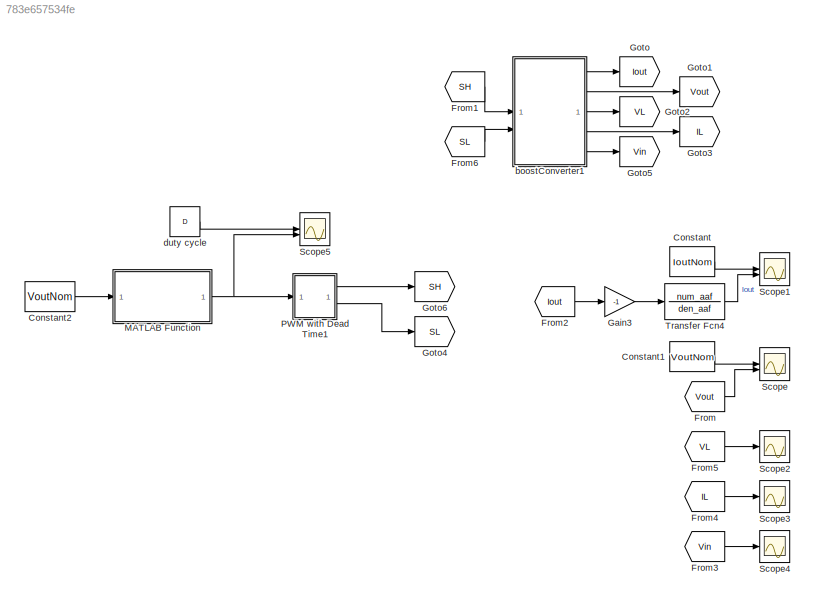
MODEL slx_783e657534fe
KIND model
CONFIG AbsTol = auto
CONFIG EnableMultiTasking = off
CONFIG FixedStep = Tstep
CONFIG MaxStep = auto
CONFIG MinStep = auto
CONFIG RelTol = 1e-3
CONFIG SampleTimeConstraint = Unconstrained
CONFIG SolverName = ode14x
CONFIG StartTime = 0.0
CONFIG StopTime = 0.1
BLOCK [Constant] Constant
  Value = IoutNom
BLOCK [Constant] Constant1
  Value = VoutNom
BLOCK [Constant] Constant2
  Value = VoutNom
BLOCK [From] From
  GotoTag = Vout
BLOCK [From] From1
  GotoTag = SH
BLOCK [From] From2
  GotoTag = Iout
BLOCK [From] From3
  GotoTag = Vin
BLOCK [From] From4
  GotoTag = IL
BLOCK [From] From5
  GotoTag = VL
BLOCK [From] From6
  GotoTag = SL
BLOCK [Gain] Gain3
  Gain = -1
BLOCK [Goto] Goto
  GotoTag = Iout
BLOCK [Goto] Goto1
  GotoTag = Vout
BLOCK [Goto] Goto2
  GotoTag = VL
BLOCK [Goto] Goto3
  GotoTag = IL
BLOCK [Goto] Goto4
  GotoTag = SL
BLOCK [Goto] Goto5
  GotoTag = Vin
BLOCK [Goto] Goto6
  GotoTag = SH
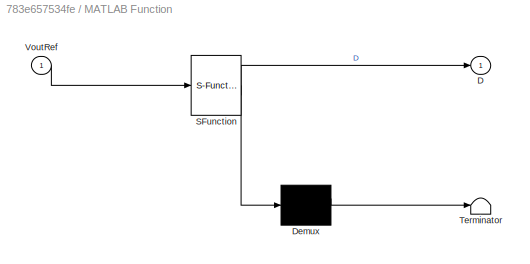
BLOCK [SubSystem] MATLAB Function
  ErrorFcn = Stateflow.Translate.translate
  PermitHierarchicalResolution = ExplicitOnly
  SFBlockType = MATLAB Function
  TreatAsAtomicUnit = on
BLOCK [Demux] MATLAB Function/ Demux 
  Outputs = 1
BLOCK [S-Function] MATLAB Function/ SFunction 
  EnableBusSupport = on
  FunctionName = sf_sfun
  Parameters = IoutNom,RserL,VinNom
  PortCounts = [1 2]
  SFcnIsStateOwnerBlock = off
  SFunctionDeploymentMode = off
  Tag = Stateflow S-Function 2
BLOCK [Terminator] MATLAB Function/ Terminator 
BLOCK [Outport] MATLAB Function/D
BLOCK [Inport] MATLAB Function/VoutRef
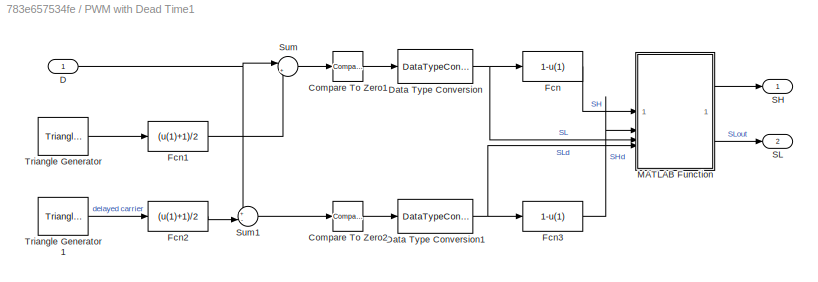
BLOCK [SubSystem] PWM with Dead Time1
BLOCK [Reference] PWM with Dead Time1/Compare To Zero1  REF=simulink/Logic and Bit
Operations/Compare
To Zero
  SourceBlock = simulink/Logic and Bit\nOperations/Compare\nTo Zero
  SourceType = Compare To Zero
BLOCK [Reference] PWM with Dead Time1/Compare To Zero2  REF=simulink/Logic and Bit
Operations/Compare
To Zero
  SourceBlock = simulink/Logic and Bit\nOperations/Compare\nTo Zero
  SourceType = Compare To Zero
BLOCK [Inport] PWM with Dead Time1/D
BLOCK [DataTypeConversion] PWM with Dead Time1/Data Type Conversion
  RndMeth = Floor
  SaturateOnIntegerOverflow = off
BLOCK [DataTypeConversion] PWM with Dead Time1/Data Type Conversion1
  RndMeth = Floor
  SaturateOnIntegerOverflow = off
BLOCK [Fcn] PWM with Dead Time1/Fcn
  Expr = 1-u(1)
BLOCK [Fcn] PWM with Dead Time1/Fcn1
  Expr = (u(1)+1)/2
BLOCK [Fcn] PWM with Dead Time1/Fcn2
  Expr = (u(1)+1)/2
BLOCK [Fcn] PWM with Dead Time1/Fcn3
  Expr = 1-u(1)
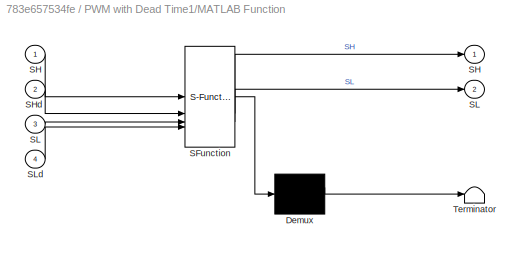
BLOCK [SubSystem] PWM with Dead Time1/MATLAB Function
  ErrorFcn = Stateflow.Translate.translate
  PermitHierarchicalResolution = ExplicitOnly
  SFBlockType = MATLAB Function
  TreatAsAtomicUnit = on
BLOCK [Demux] PWM with Dead Time1/MATLAB Function/ Demux 
  Outputs = 1
BLOCK [S-Function] PWM with Dead Time1/MATLAB Function/ SFunction 
  EnableBusSupport = on
  FunctionName = sf_sfun
  PortCounts = [4 3]
  SFcnIsStateOwnerBlock = off
  SFunctionDeploymentMode = off
  Tag = Stateflow S-Function 1
BLOCK [Terminator] PWM with Dead Time1/MATLAB Function/ Terminator 
BLOCK [Outport] PWM with Dead Time1/MATLAB Function/SH
BLOCK [Inport] PWM with Dead Time1/MATLAB Function/SH 
BLOCK [Inport] PWM with Dead Time1/MATLAB Function/SHd
  Port = 2
BLOCK [Outport] PWM with Dead Time1/MATLAB Function/SL
  Port = 2
BLOCK [Inport] PWM with Dead Time1/MATLAB Function/SL 
  Port = 3
BLOCK [Inport] PWM with Dead Time1/MATLAB Function/SLd
  Port = 4
BLOCK [Outport] PWM with Dead Time1/SH
BLOCK [Outport] PWM with Dead Time1/SL
  Port = 2
BLOCK [Sum] PWM with Dead Time1/Sum
  Inputs = |+-
BLOCK [Sum] PWM with Dead Time1/Sum1
  Inputs = +-|
BLOCK [Reference] PWM with Dead Time1/Triangle Generator  REF=spsTriangleGeneratorLib/Triangle
Generator
  LibrarySourceBlock = sps_lib/Sources/Signal Generator Sources/Triangle\nGenerator
  SourceBlock = spsTriangleGeneratorLib/Triangle\nGenerator
  SourceType = Triangle Generator
BLOCK [Reference] PWM with Dead Time1/Triangle Generator1  REF=spsTriangleGeneratorLib/Triangle
Generator
  LibrarySourceBlock = sps_lib/Sources/Signal Generator Sources/Triangle\nGenerator
  SourceBlock = spsTriangleGeneratorLib/Triangle\nGenerator
  SourceType = Triangle Generator
BLOCK [Scope] Scope
  Floating = off
  NumInputPorts = 2
  ScopeSpecificationString = Simulink.scopes.TimeScopeBlockCfg('CurrentConfiguration', extmgr.ConfigurationSet(extmgr.Configuration('Core','General UI',true),extmgr.Configuration('Core','Source UI',true),extmgr.Configuration('Sources','WiredSimulink',true),extmgr.Configuration('Visuals','Time Domain',true,'SerializedDisplays',{struct('MinYLimReal','-10.45142','MaxYLimReal','94.06279','YLabelReal','','MinYLimMag','0.00000','Ma...<+1736ch>
BLOCK [Scope] Scope1
  Floating = off
  NumInputPorts = 2
  ScopeSpecificationString = Simulink.scopes.TimeScopeBlockCfg('CurrentConfiguration', extmgr.ConfigurationSet(extmgr.Configuration('Core','General UI',true),extmgr.Configuration('Core','Source UI',true),extmgr.Configuration('Sources','WiredSimulink',true,'DataLoggingVariableName','ScopeData1'),extmgr.Configuration('Visuals','Time Domain',true,'SerializedDisplays',{struct('MinYLimReal','-16.22887','MaxYLimReal','38.15598','YL...<+1876ch>
BLOCK [Scope] Scope2
  Floating = off
  NumInputPorts = 1
  ScopeSpecificationString = Simulink.scopes.TimeScopeBlockCfg('CurrentConfiguration', extmgr.ConfigurationSet(extmgr.Configuration('Core','General UI',true),extmgr.Configuration('Core','Source UI',true),extmgr.Configuration('Sources','WiredSimulink',true,'DataLoggingVariableName','ScopeData2'),extmgr.Configuration('Visuals','Time Domain',true,'SerializedDisplays',{struct('MinYLimReal','-60.61731','MaxYLimReal','40.96954','YL...<+1458ch>
BLOCK [Scope] Scope3
  Floating = off
  NumInputPorts = 1
  ScopeSpecificationString = Simulink.scopes.TimeScopeBlockCfg('CurrentConfiguration', extmgr.ConfigurationSet(extmgr.Configuration('Core','General UI',true),extmgr.Configuration('Core','Source UI',true),extmgr.Configuration('Sources','WiredSimulink',true,'DataLoggingVariableName','ScopeData3'),extmgr.Configuration('Visuals','Time Domain',true,'SerializedDisplays',{struct('MinYLimReal','-7.55069','MaxYLimReal','26.67675','YLa...<+1528ch>
BLOCK [Scope] Scope4
  Floating = off
  NumInputPorts = 1
  ScopeSpecificationString = Simulink.scopes.TimeScopeBlockCfg('CurrentConfiguration', extmgr.ConfigurationSet(extmgr.Configuration('Core','General UI',true),extmgr.Configuration('Core','Source UI',true),extmgr.Configuration('Sources','WiredSimulink',true,'DataLoggingVariableName','ScopeData4'),extmgr.Configuration('Visuals','Time Domain',true),extmgr.Configuration('Tools','Plot Navigation',true),extmgr.Configuration('Tools',...<+40ch>
BLOCK [Scope] Scope5
  Floating = off
  NumInputPorts = 2
  ScopeSpecificationString = Simulink.scopes.TimeScopeBlockCfg('CurrentConfiguration', extmgr.ConfigurationSet(extmgr.Configuration('Core','General UI',true),extmgr.Configuration('Core','Source UI',true),extmgr.Configuration('Sources','WiredSimulink',true,'DataLoggingVariableName','ScopeData1'),extmgr.Configuration('Visuals','Time Domain',true,'SerializedDisplays',{struct('MinYLimReal','0.39931','MaxYLimReal','0.40624','YLabe...<+1446ch>
BLOCK [TransferFcn] Transfer Fcn4
  Denominator = den_aaf
  Numerator = num_aaf
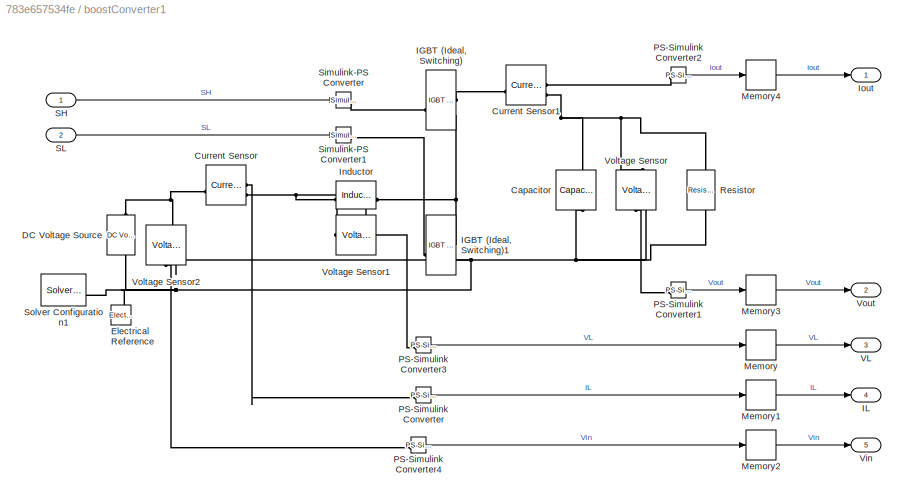
BLOCK [SubSystem] boostConverter1
BLOCK [Reference] boostConverter1/Capacitor  REF=fl_lib/Electrical/Electrical Elements/Capacitor
  NameLocation = left
  SourceBlock = fl_lib/Electrical/Electrical Elements/Capacitor
  SourceType = Capacitor
BLOCK [Reference] boostConverter1/Current Sensor  REF=fl_lib/Electrical/Electrical Sensors/Current Sensor
  LibrarySourceBlock = ee_lib/Sensors &\nTransducers/Current Sensor
  SourceBlock = fl_lib/Electrical/Electrical Sensors/Current Sensor
  SourceType = Current Sensor
BLOCK [Reference] boostConverter1/Current Sensor1  REF=fl_lib/Electrical/Electrical Sensors/Current Sensor
  LibrarySourceBlock = ee_lib/Sensors &\nTransducers/Current Sensor
  SourceBlock = fl_lib/Electrical/Electrical Sensors/Current Sensor
  SourceType = Current Sensor
BLOCK [Reference] boostConverter1/DC Voltage Source  REF=fl_lib/Electrical/Electrical Sources/DC Voltage Source
  NameLocation = right
  SourceBlock = fl_lib/Electrical/Electrical Sources/DC Voltage Source
  SourceType = DC Voltage Source
BLOCK [Reference] boostConverter1/Electrical Reference  REF=fl_lib/Electrical/Electrical Elements/Electrical Reference
  NameLocation = right
  SourceBlock = fl_lib/Electrical/Electrical Elements/Electrical Reference
  SourceType = Electrical Reference
BLOCK [Reference] boostConverter1/IGBT (Ideal, Switching)  REF=ee_lib/Semiconductors &
Converters/IGBT
(Ideal,
Switching)
  SourceBlock = ee_lib/Semiconductors &\nConverters/IGBT\n(Ideal,\nSwitching)
  SourceType = IGBT\n(Ideal,\nSwitching)
BLOCK [Reference] boostConverter1/IGBT (Ideal, Switching)1  REF=ee_lib/Semiconductors &
Converters/IGBT
(Ideal,
Switching)
  SourceBlock = ee_lib/Semiconductors &\nConverters/IGBT\n(Ideal,\nSwitching)
  SourceType = IGBT\n(Ideal,\nSwitching)
BLOCK [Outport] boostConverter1/IL
  Port = 4
BLOCK [Reference] boostConverter1/Inductor  REF=fl_lib/Electrical/Electrical Elements/Inductor
  SourceBlock = fl_lib/Electrical/Electrical Elements/Inductor
  SourceType = Inductor
BLOCK [Outport] boostConverter1/Iout
BLOCK [Memory] boostConverter1/Memory
BLOCK [Memory] boostConverter1/Memory1
BLOCK [Memory] boostConverter1/Memory2
BLOCK [Memory] boostConverter1/Memory3
BLOCK [Memory] boostConverter1/Memory4
BLOCK [Reference] boostConverter1/PS-Simulink Converter  REF=nesl_utility/PS-Simulink
Converter
  SourceBlock = nesl_utility/PS-Simulink\nConverter
  SourceType = PS-Simulink\nConverter
BLOCK [Reference] boostConverter1/PS-Simulink Converter1  REF=nesl_utility/PS-Simulink
Converter
  SourceBlock = nesl_utility/PS-Simulink\nConverter
  SourceType = PS-Simulink\nConverter
BLOCK [Reference] boostConverter1/PS-Simulink Converter2  REF=nesl_utility/PS-Simulink
Converter
  SourceBlock = nesl_utility/PS-Simulink\nConverter
  SourceType = PS-Simulink\nConverter
BLOCK [Reference] boostConverter1/PS-Simulink Converter3  REF=nesl_utility/PS-Simulink
Converter
  SourceBlock = nesl_utility/PS-Simulink\nConverter
  SourceType = PS-Simulink\nConverter
BLOCK [Reference] boostConverter1/PS-Simulink Converter4  REF=nesl_utility/PS-Simulink
Converter
  SourceBlock = nesl_utility/PS-Simulink\nConverter
  SourceType = PS-Simulink\nConverter
BLOCK [Reference] boostConverter1/Resistor  REF=ee_lib/Passive/Resistor
  NameLocation = left
  SourceBlock = ee_lib/Passive/Resistor
  SourceType = Resistor
BLOCK [Inport] boostConverter1/SH
BLOCK [Inport] boostConverter1/SL
  Port = 2
BLOCK [Reference] boostConverter1/Simulink-PS Converter  REF=nesl_utility/Simulink-PS
Converter
  SourceBlock = nesl_utility/Simulink-PS\nConverter
  SourceType = Simulink-PS\nConverter
BLOCK [Reference] boostConverter1/Simulink-PS Converter1  REF=nesl_utility/Simulink-PS
Converter
  SourceBlock = nesl_utility/Simulink-PS\nConverter
  SourceType = Simulink-PS\nConverter
BLOCK [Reference] boostConverter1/Solver Configuration1  REF=nesl_utility/Solver
Configuration
  SourceBlock = nesl_utility/Solver\nConfiguration
  SourceType = Solver\nConfiguration
BLOCK [Outport] boostConverter1/VL
  Port = 3
BLOCK [Outport] boostConverter1/Vin
  Port = 5
BLOCK [Reference] boostConverter1/Voltage Sensor  REF=fl_lib/Electrical/Electrical Sensors/Voltage Sensor
  LibrarySourceBlock = ee_lib/Sensors &\nTransducers/Voltage Sensor
  NameLocation = right
  SourceBlock = fl_lib/Electrical/Electrical Sensors/Voltage Sensor
  SourceType = Voltage Sensor
BLOCK [Reference] boostConverter1/Voltage Sensor1  REF=fl_lib/Electrical/Electrical Sensors/Voltage Sensor
  LibrarySourceBlock = ee_lib/Sensors &\nTransducers/Voltage Sensor
  NameLocation = top
  SourceBlock = fl_lib/Electrical/Electrical Sensors/Voltage Sensor
  SourceType = Voltage Sensor
BLOCK [Reference] boostConverter1/Voltage Sensor2  REF=fl_lib/Electrical/Electrical Sensors/Voltage Sensor
  LibrarySourceBlock = ee_lib/Sensors &\nTransducers/Voltage Sensor
  NameLocation = right
  SourceBlock = fl_lib/Electrical/Electrical Sensors/Voltage Sensor
  SourceType = Voltage Sensor
BLOCK [Outport] boostConverter1/Vout
  Port = 2
BLOCK [Constant] duty cycle
  Value = D
LINE Constant1:1 -> Scope:1
LINE Constant2:1 -> MATLAB Function:1
LINE Constant:1 -> Scope1:1
LINE From1:1 -> boostConverter1:1
LINE From2:1 -> Gain3:1
LINE From3:1 -> Scope4:1
LINE From4:1 -> Scope3:1
LINE From5:1 -> Scope2:1
LINE From6:1 -> boostConverter1:2
LINE From:1 -> Scope:2
LINE Gain3:1 -> Transfer Fcn4:1
NET MATLAB Function:1 -> PWM with Dead Time1:1, Scope5:2
LINE PWM with Dead Time1/Compare To Zero1:1 -> PWM with Dead Time1/Data Type Conversion:1
LINE PWM with Dead Time1/Compare To Zero2:1 -> PWM with Dead Time1/Data Type Conversion1:1
NET PWM with Dead Time1/D:1 -> PWM with Dead Time1/Sum1:1, PWM with Dead Time1/Sum:1
NET PWM with Dead Time1/Data Type Conversion1:1 -> PWM with Dead Time1/Fcn3:1, PWM with Dead Time1/MATLAB Function:4
NET PWM with Dead Time1/Data Type Conversion:1 -> PWM with Dead Time1/Fcn:1, PWM with Dead Time1/MATLAB Function:3
LINE PWM with Dead Time1/Fcn1:1 -> PWM with Dead Time1/Sum:2
LINE PWM with Dead Time1/Fcn2:1 -> PWM with Dead Time1/Sum1:2
LINE PWM with Dead Time1/Fcn3:1 -> PWM with Dead Time1/MATLAB Function:2
LINE PWM with Dead Time1/Fcn:1 -> PWM with Dead Time1/MATLAB Function:1
LINE PWM with Dead Time1/MATLAB Function:1 -> PWM with Dead Time1/SH:1
LINE PWM with Dead Time1/MATLAB Function:2 -> PWM with Dead Time1/SL:1
LINE PWM with Dead Time1/Sum1:1 -> PWM with Dead Time1/Compare To Zero2:1
LINE PWM with Dead Time1/Sum:1 -> PWM with Dead Time1/Compare To Zero1:1
LINE PWM with Dead Time1/Triangle Generator1:1 -> PWM with Dead Time1/Fcn2:1
LINE PWM with Dead Time1/Triangle Generator:1 -> PWM with Dead Time1/Fcn1:1
LINE PWM with Dead Time1:1 -> Goto6:1
LINE PWM with Dead Time1:2 -> Goto4:1
LINE Transfer Fcn4:1 -> Scope1:2
LINE boostConverter1/Memory1:1 -> boostConverter1/IL:1
LINE boostConverter1/Memory2:1 -> boostConverter1/Vin:1
LINE boostConverter1/Memory3:1 -> boostConverter1/Vout:1
LINE boostConverter1/Memory4:1 -> boostConverter1/Iout:1
LINE boostConverter1/Memory:1 -> boostConverter1/VL:1
LINE boostConverter1/PS-Simulink Converter1:1 -> boostConverter1/Memory3:1
LINE boostConverter1/PS-Simulink Converter2:1 -> boostConverter1/Memory4:1
LINE boostConverter1/PS-Simulink Converter3:1 -> boostConverter1/Memory:1
LINE boostConverter1/PS-Simulink Converter4:1 -> boostConverter1/Memory2:1
LINE boostConverter1/PS-Simulink Converter:1 -> boostConverter1/Memory1:1
LINE boostConverter1/SH:1 -> boostConverter1/Simulink-PS Converter:1
LINE boostConverter1/SL:1 -> boostConverter1/Simulink-PS Converter1:1
LINE boostConverter1:1 -> Goto:1
LINE boostConverter1:2 -> Goto1:1
LINE boostConverter1:3 -> Goto2:1
LINE boostConverter1:4 -> Goto3:1
LINE boostConverter1:5 -> Goto5:1
LINE duty cycle:1 -> Scope5:1
PNET net1: boostConverter1/Capacitor:LConn1 -- boostConverter1/Current Sensor1:RConn2 -- boostConverter1/Resistor:LConn1 -- boostConverter1/Voltage Sensor:LConn1
PNET net2: boostConverter1/Capacitor:RConn1 -- boostConverter1/DC Voltage Source:RConn1 -- boostConverter1/Electrical Reference:LConn1 -- boostConverter1/IGBT (Ideal, Switching)1:RConn2 -- boostConverter1/Resistor:RConn1 -- boostConverter1/Solver Configuration1:RConn1 -- boostConverter1/Voltage Sensor2:RConn2 -- boostConverter1/Voltage Sensor:RConn2
PLINE boostConverter1/Current Sensor1:LConn1 -- boostConverter1/IGBT (Ideal, Switching):RConn1
PLINE boostConverter1/Current Sensor1:RConn1 -- boostConverter1/PS-Simulink Converter2:LConn1
PNET net3: boostConverter1/Current Sensor:LConn1 -- boostConverter1/DC Voltage Source:LConn1 -- boostConverter1/Voltage Sensor2:LConn1
PLINE boostConverter1/Current Sensor:RConn1 -- boostConverter1/PS-Simulink Converter:LConn1
PNET net4: boostConverter1/Current Sensor:RConn2 -- boostConverter1/Inductor:LConn1 -- boostConverter1/Voltage Sensor1:LConn1
PLINE boostConverter1/IGBT (Ideal, Switching)1:LConn1 -- boostConverter1/Simulink-PS Converter1:RConn1
PNET net5: boostConverter1/IGBT (Ideal, Switching)1:RConn1 -- boostConverter1/IGBT (Ideal, Switching):RConn2 -- boostConverter1/Inductor:RConn1 -- boostConverter1/Voltage Sensor1:RConn2
PLINE boostConverter1/IGBT (Ideal, Switching):LConn1 -- boostConverter1/Simulink-PS Converter:RConn1
PLINE boostConverter1/PS-Simulink Converter1:LConn1 -- boostConverter1/Voltage Sensor:RConn1
PLINE boostConverter1/PS-Simulink Converter3:LConn1 -- boostConverter1/Voltage Sensor1:RConn1
PLINE boostConverter1/PS-Simulink Converter4:LConn1 -- boostConverter1/Voltage Sensor2:RConn1
note: NET lines group one-source signal fan-out (src -> all destinations, sorted); 1:1 wires keep LINE; PNET lines group multi-terminal physical nets as a canonical sorted terminal list (undirected conserving connections); 2-terminal nets keep the pairwise PLINE form
CHART PWM with Dead Time1/MATLAB Function states=1 transitions=1
  STATE_LABEL 'eML_blk_kernel()'
  STATE_LABEL 'SCRIPT:\nfunction [SH,SL] = fcn(SH,SHd,SL,SLd)\n\nif SHd + SH > 1\n    SH = 1;\nelse\n    SH = 0;\nend\n\nif SLd + SL > 1\n    SL = 1;\nelse\n    SL = 0;\nend\n'
CHART MATLAB Function states=1 transitions=1
  STATE_LABEL 'eML_blk_kernel()'
  STATE_LABEL 'SCRIPT:\nfunction D = fcn(VinNom, RserL, IoutNom, VoutRef)\n\n% openloop duty cycle for 1leg\nD = 1 - VinNom/VoutRef;\n\n%\n% OL duty cycle correction\nIin = IoutNom/(1-D);\nVdropL = Iin*RserL;\nD = (1 - (VinNom-VdropL) / VoutRef);\n%}'
CHART  states=0 transitions=0
CHART  states=0 transitions=0
